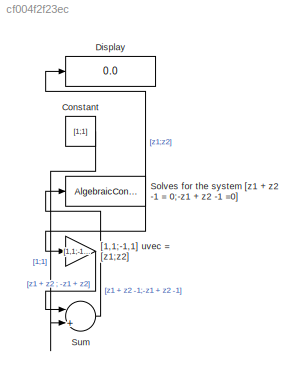
MODEL slx_cf004f2f23ec
KIND model
CONFIG AbsTol = auto
CONFIG EnableMultiTasking = off
CONFIG FixedStep = auto
CONFIG MaxStep = auto
CONFIG MinStep = auto
CONFIG RelTol = 1e-3
CONFIG SampleTimeConstraint = Unconstrained
CONFIG Solver = VariableStepAuto
CONFIG SolverName = VariableStepAuto
CONFIG StartTime = 0.0
CONFIG StopTime = 10.0
BLOCK [Constant] Constant
  Value = [1;1]
  VectorParams1D = off
BLOCK [Display] Display
  Decimation = 1
  Ports = [1]
BLOCK [AlgebraicConstraint] Solves for the system [z1 + z2 -1 = 0;-z1 + z2 -1 =0]
  InitialGuess = [0;1]
BLOCK [Sum] Sum
  IconShape = round
  InputSameDT = off
  Inputs = |+-
  OutDataTypeStr = Inherit: Inherit via internal rule
  Ports = [2, 1]
  SaturateOnIntegerOverflow = off
BLOCK [Gain] [1,1;-1,1] uvec = [z1;z2]
  Gain = [1,1;-1,1]
  Multiplication = Matrix(K*u) (u vector)
  OutDataTypeStr = Inherit: Inherit via internal rule
  ParamDataTypeStr = Inherit: Inherit via internal rule
  SaturateOnIntegerOverflow = off
LINE Constant:1 -> Sum:2
NET Solves for the system [z1 + z2 -1 = 0;-z1 + z2 -1 =0]:1 -> Display:1, [1,1;-1,1] uvec = [z1;z2]:1
LINE Sum:1 -> Solves for the system [z1 + z2 -1 = 0;-z1 + z2 -1 =0]:1
LINE [1,1;-1,1] uvec = [z1;z2]:1 -> Sum:1
note: NET lines group one-source signal fan-out (src -> all destinations, sorted); 1:1 wires keep LINE
